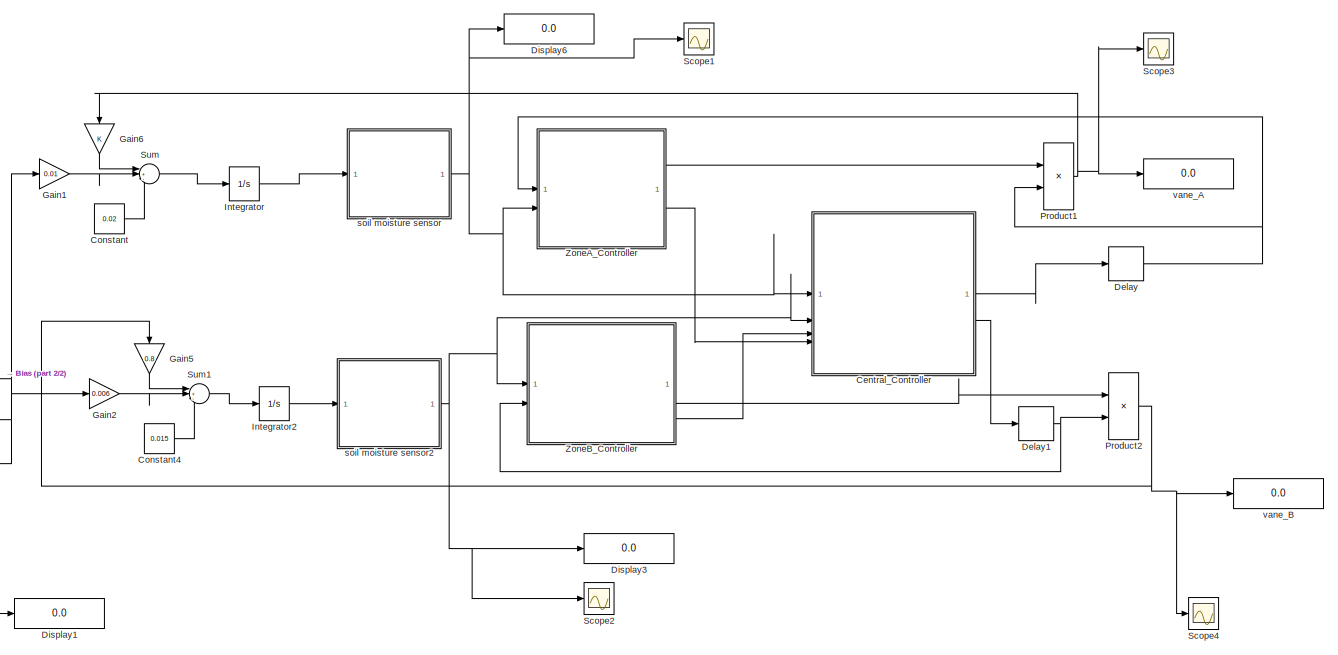
[diagram: root canvas - part 1/2, most of the canvas]
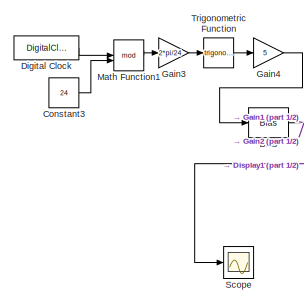
[diagram: root canvas - part 2/2, middle left region]
MODEL slx_6a8ccc0dc4ff
KIND model
CONFIG AbsTol = auto
CONFIG EnableMultiTasking = off
CONFIG FixedStep = auto
CONFIG MaxStep = auto
CONFIG MinStep = auto
CONFIG RelTol = 1e-3
CONFIG SampleTimeConstraint = Unconstrained
CONFIG SolverName = ode45
CONFIG StartTime = 0.0
CONFIG StopTime = 50
BLOCK [Bias] Bias
  Bias = 22
  SaturateOnIntegerOverflow = off
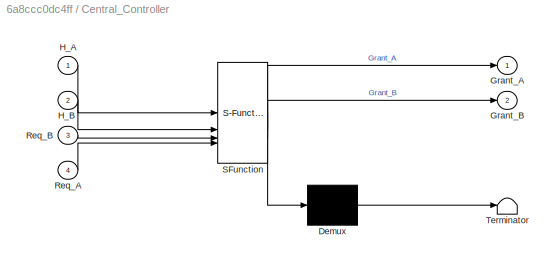
BLOCK [SubSystem] Central_Controller
  ErrorFcn = Stateflow.Translate.translate
  PermitHierarchicalResolution = ExplicitOnly
  SFBlockType = Chart
  TreatAsAtomicUnit = on
BLOCK [Demux] Central_Controller/ Demux 
  Outputs = 1
BLOCK [S-Function] Central_Controller/ SFunction 
  EnableBusSupport = off
  FunctionName = sf_sfun
  PortCounts = [4 3]
  SFcnIsStateOwnerBlock = off
  SFunctionDeploymentMode = off
  Tag = Stateflow S-Function 2
BLOCK [Terminator] Central_Controller/ Terminator 
BLOCK [Outport] Central_Controller/Grant_A
BLOCK [Outport] Central_Controller/Grant_B
  Port = 2
BLOCK [Inport] Central_Controller/H_A
BLOCK [Inport] Central_Controller/H_B
  Port = 2
BLOCK [Inport] Central_Controller/Req_A
  Port = 4
BLOCK [Inport] Central_Controller/Req_B
  Port = 3
BLOCK [Constant] Constant
  Value = 0.02
BLOCK [Constant] Constant3
  Value = 24
BLOCK [Constant] Constant4
  Value = 0.015
BLOCK [Delay] Delay
  DelayLength = 1
  InitialCondition = 0
  InputPortMap = u0
BLOCK [Delay] Delay1
  DelayLength = 1
  InitialCondition = 0
  InputPortMap = u0
BLOCK [DigitalClock] Digital Clock
BLOCK [Display] Display1
  Decimation = 1
BLOCK [Display] Display3
  Decimation = 1
BLOCK [Display] Display6
  Decimation = 1
BLOCK [Gain] Gain1
  Gain = 0.01
BLOCK [Gain] Gain2
  Gain = 0.006
BLOCK [Gain] Gain3
  Gain = 2*pi/24
BLOCK [Gain] Gain4
  Gain = 5
BLOCK [Gain] Gain5
  Gain = 0.8
  NameLocation = left
BLOCK [Gain] Gain6
  NameLocation = left
BLOCK [Integrator] Integrator
  IgnoreLimit = on
  InitialCondition = 20
  LimitOutput = on
  LowerSaturationLimit = 0
  UpperSaturationLimit = 100
BLOCK [Integrator] Integrator2
  IgnoreLimit = on
  InitialCondition = 20
  LimitOutput = on
  LowerSaturationLimit = 0
  UpperSaturationLimit = 100
BLOCK [Math] Math Function1
  Operator = mod
BLOCK [Product] Product1
BLOCK [Product] Product2
BLOCK [Scope] Scope
  Floating = off
  GraphicalSettings = {"GraphicalSettings":{"LegacySettings":true,"Style":{"Style":{"PlotType":"Auto"}}}}
  NumInputPorts = 1
  WasSavedAsWebScope = on
BLOCK [Scope] Scope1
  ActiveDisplayYMaximum = 71.864930916161683
  ActiveDisplayYMinimum = -83.6812076151947
  DataLoggingVariableName = ScopeData1
  Floating = off
  GraphicalSettings = {"AxesScalingProperties":{"AlignXAxis":"Center","AlignYAxis":"Center","AutoScaleXAxisLimits":false,"AxesScaling":"Manual","AxesScalingNumUpdates":10,"ExpandOnly":true,"ScaleAxesLimitsAtStop":false,"XAxisDataRange":100,"YAxisDataRange":80},"DisplayProperties":{"ColorOrder":["auto","auto","auto","auto","auto","auto","auto","auto","auto","auto","auto","auto","auto","auto","auto","auto","auto","auto",...<+1936ch>
  MultipleDisplayCache = [{"MaxYLimMag":10,"MaxYLimReal":71.864930916161683,"MinYLimMag":0,"MinYLimReal":-83.6812076151947,"PlotAsMagnitudePhase":false,"ShowGrid":true,"ShowLegend":false,"Title":"%<SignalLabel>","YLabel":""}]
  NumInputPorts = 1
  ScopeFrameLocation = window
  WasSavedAsWebScope = on
  WindowPosition = [55.000000,329.000000,560.000000,420.000000,]
BLOCK [Scope] Scope2
  DataLoggingVariableName = ScopeData2
  Floating = off
  GraphicalSettings = {"GraphicalSettings":{"LegacySettings":true,"Style":{"Style":{"PlotType":"Auto"}}}}
  NumInputPorts = 1
  WasSavedAsWebScope = on
BLOCK [Scope] Scope3
  ActiveDisplayYMaximum = 1.125
  ActiveDisplayYMinimum = -0.12499999999999997
  DataLoggingVariableName = ScopeData3
  Floating = off
  GraphicalSettings = {"Style":{"BackgroundColor":[0.12941176470588237,0.12941176470588237,0.12941176470588237],"AxesColor":[0.07058823529411765,0.07058823529411765,0.07058823529411765],"LabelsColor":[0.8509803921568627,0.8509803921568627,0.8509803921568627],"PreserveColors":false,"Visible":[true],"LineStyle":["-"],"LineWidth":[1.5],"BarWidth":[0.9],"LineColor":["auto"],"LineFaceAlpha":[1],"LineEdgeAlpha":[1],"Marker":...<+1904ch>
  MultipleDisplayCache = [{"MaxYLimMag":1.125,"MaxYLimReal":1.125,"MinYLimMag":0,"MinYLimReal":-0.12499999999999997,"PlotAsMagnitudePhase":false,"ShowGrid":true,"ShowLegend":false,"Title":"%<SignalLabel>","YLabel":""}]
  NumInputPorts = 1
  ScopeFrameLocation = window
  WasSavedAsWebScope = on
  WindowPosition = [199.000000,223.000000,560.000000,420.000000,]
BLOCK [Scope] Scope4
  DataLoggingVariableName = ScopeData4
  Floating = off
  GraphicalSettings = {"GraphicalSettings":{"LegacySettings":true,"Style":{"Style":{"PlotType":"Auto"}}}}
  NumInputPorts = 1
  WasSavedAsWebScope = on
BLOCK [Sum] Sum
  Inputs = |+--
BLOCK [Sum] Sum1
  Inputs = |+--
BLOCK [Trigonometry] Trigonometric Function
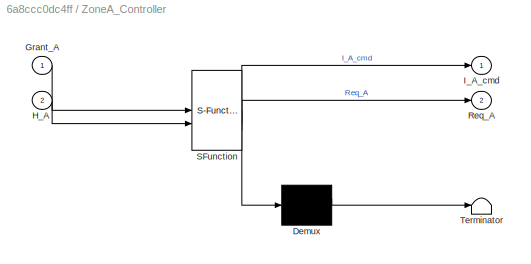
BLOCK [SubSystem] ZoneA_Controller
  ErrorFcn = Stateflow.Translate.translate
  PermitHierarchicalResolution = ExplicitOnly
  SFBlockType = Chart
  TreatAsAtomicUnit = on
BLOCK [Demux] ZoneA_Controller/ Demux 
  Outputs = 1
BLOCK [S-Function] ZoneA_Controller/ SFunction 
  EnableBusSupport = off
  FunctionName = sf_sfun
  PortCounts = [2 3]
  SFcnIsStateOwnerBlock = off
  SFunctionDeploymentMode = off
  Tag = Stateflow S-Function 3
BLOCK [Terminator] ZoneA_Controller/ Terminator 
BLOCK [Inport] ZoneA_Controller/Grant_A
BLOCK [Inport] ZoneA_Controller/H_A
  Port = 2
BLOCK [Outport] ZoneA_Controller/I_A_cmd
BLOCK [Outport] ZoneA_Controller/Req_A
  Port = 2
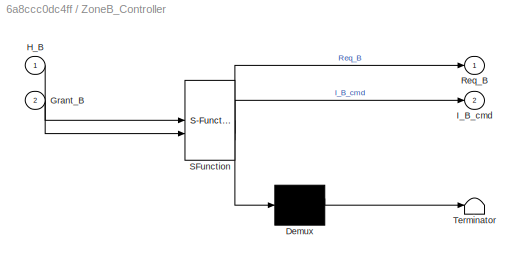
BLOCK [SubSystem] ZoneB_Controller
  ErrorFcn = Stateflow.Translate.translate
  PermitHierarchicalResolution = ExplicitOnly
  SFBlockType = Chart
  TreatAsAtomicUnit = on
BLOCK [Demux] ZoneB_Controller/ Demux 
  Outputs = 1
BLOCK [S-Function] ZoneB_Controller/ SFunction 
  EnableBusSupport = off
  FunctionName = sf_sfun
  PortCounts = [2 3]
  SFcnIsStateOwnerBlock = off
  SFunctionDeploymentMode = off
  Tag = Stateflow S-Function 1
BLOCK [Terminator] ZoneB_Controller/ Terminator 
BLOCK [Inport] ZoneB_Controller/Grant_B
  Port = 2
BLOCK [Inport] ZoneB_Controller/H_B
BLOCK [Outport] ZoneB_Controller/I_B_cmd
  Port = 2
BLOCK [Outport] ZoneB_Controller/Req_B
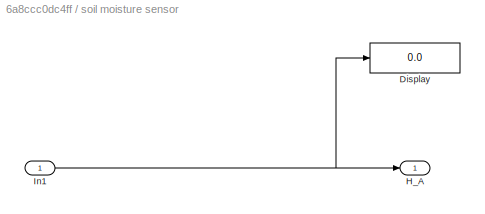
BLOCK [SubSystem] soil moisture sensor
BLOCK [Display] soil moisture sensor/Display
  Decimation = 1
BLOCK [Outport] soil moisture sensor/H_A
BLOCK [Inport] soil moisture sensor/In1
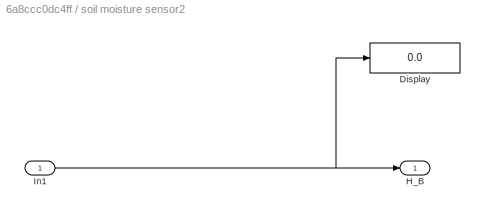
BLOCK [SubSystem] soil moisture sensor2
BLOCK [Display] soil moisture sensor2/Display
  Decimation = 1
BLOCK [Outport] soil moisture sensor2/H_B
BLOCK [Inport] soil moisture sensor2/In1
BLOCK [Display] vane_A
  Decimation = 1
BLOCK [Display] vane_B
  Decimation = 1
NET Bias:1 -> Display1:1, Gain1:1, Gain2:1, Scope:1
LINE Central_Controller:1 -> Delay:1
LINE Central_Controller:2 -> Delay1:1
LINE Constant3:1 -> Math Function1:2
LINE Constant4:1 -> Sum1:3
LINE Constant:1 -> Sum:3
NET Delay1:1 -> Product2:2, ZoneB_Controller:2
NET Delay:1 -> Product1:2, ZoneA_Controller:1
LINE Digital Clock:1 -> Math Function1:1
LINE Gain1:1 -> Sum:2
LINE Gain2:1 -> Sum1:2
LINE Gain3:1 -> Trigonometric Function:1
LINE Gain4:1 -> Bias:1
LINE Gain5:1 -> Sum1:1
LINE Gain6:1 -> Sum:1
LINE Integrator2:1 -> soil moisture sensor2:1
LINE Integrator:1 -> soil moisture sensor:1
LINE Math Function1:1 -> Gain3:1
NET Product1:1 -> Gain6:1, Scope3:1, vane_A:1
NET Product2:1 -> Gain5:1, Scope4:1, vane_B:1
LINE Sum1:1 -> Integrator2:1
LINE Sum:1 -> Integrator:1
LINE Trigonometric Function:1 -> Gain4:1
LINE ZoneA_Controller:1 -> Product1:1
LINE ZoneA_Controller:2 -> Central_Controller:4
LINE ZoneB_Controller:1 -> Central_Controller:3
LINE ZoneB_Controller:2 -> Product2:1
NET soil moisture sensor/In1:1 -> soil moisture sensor/Display:1, soil moisture sensor/H_A:1
NET soil moisture sensor2/In1:1 -> soil moisture sensor2/Display:1, soil moisture sensor2/H_B:1
NET soil moisture sensor2:1 -> Central_Controller:2, Display3:1, Scope2:1, ZoneB_Controller:1
NET soil moisture sensor:1 -> Central_Controller:1, Display6:1, Scope1:1, ZoneA_Controller:2
note: NET lines group one-source signal fan-out (src -> all destinations, sorted); 1:1 wires keep LINE
CHART ZoneB_Controller states=3 transitions=4
  STATE_LABEL 'Surveillance\nduring:\n    Req_B = false;\n    I_B_cmd = false;'
  STATE_LABEL 'Attente\nduring:\n    I_B_cmd = false;'
  STATE_LABEL 'Irrigation\nduring:\n    I_B_cmd = true;'
CHART Central_Controller states=3 transitions=9
  STATE_LABEL 'Idle\nduring:\n   Grant_A = false;\n   Grant_B = false;\n'
  STATE_LABEL 'Serve_A\nduring:\n    Grant_A = true;\n    Grant_B = false;'
  STATE_LABEL 'Serve_B\nduring:\n    Grant_A = false;\n    Grant_B = true;'
CHART ZoneA_Controller states=3 transitions=4
  STATE_LABEL 'Surveillance\nduring:\n    Req_A = false;\n    I_A_cmd = false;'
  STATE_LABEL 'Attente\nduring:\n    I_A_cmd = false;'
  STATE_LABEL 'Irrigation\nduring:\n    I_A_cmd = true;'
CHART  states=0 transitions=0
CHART  states=0 transitions=0
CHART  states=0 transitions=0
